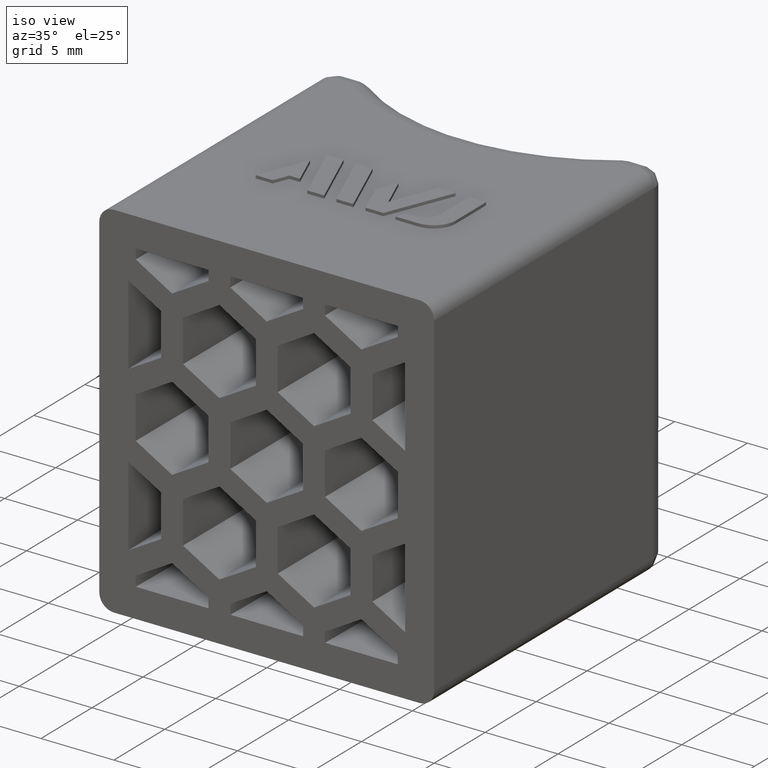
[diagram: clean part render]
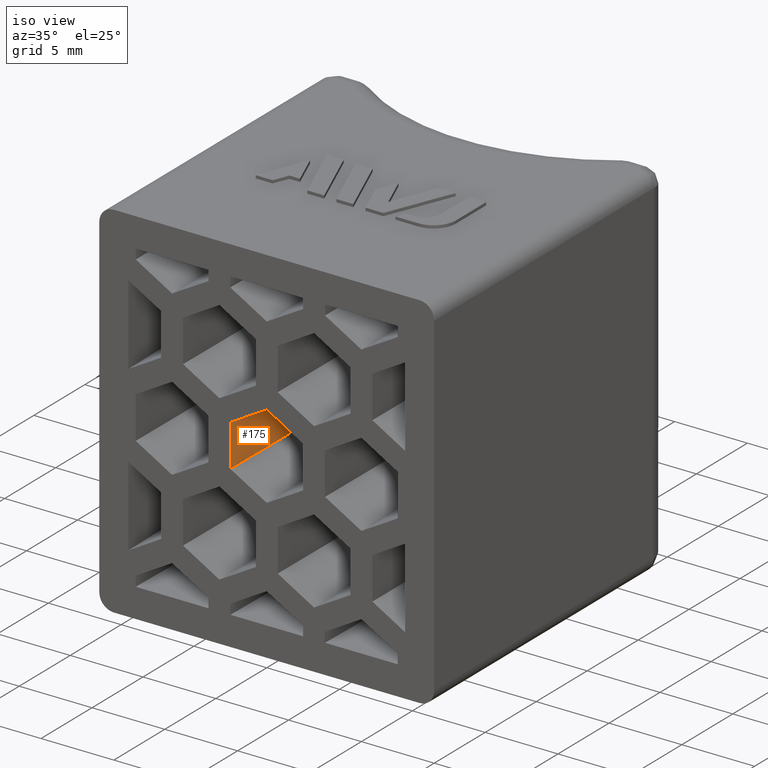
[diagram: same view with one face highlighted and labeled with its STEP entity id]
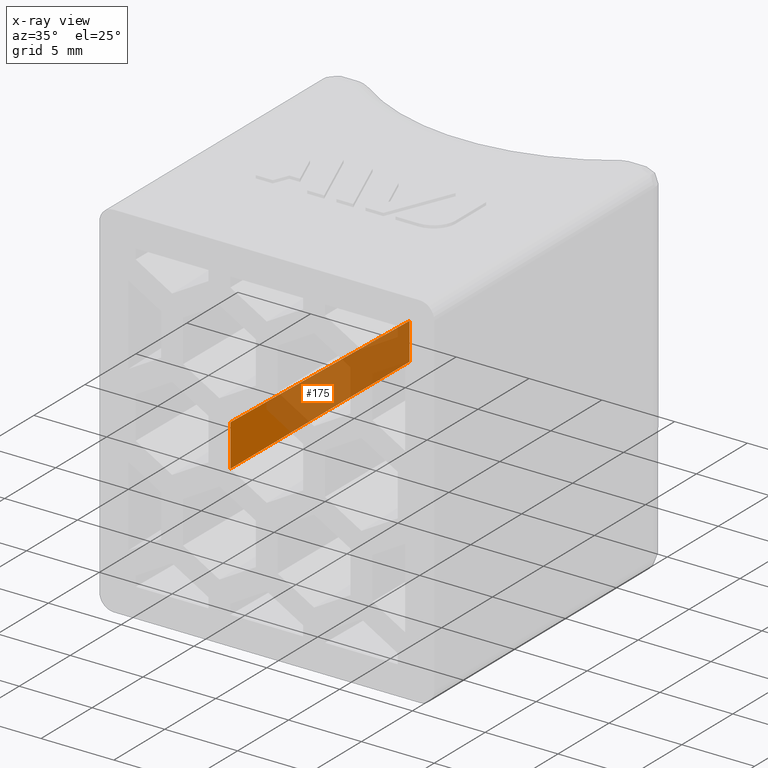
[diagram: x-ray of the same camera — body ghosted, the highlighted face saturated]
A machine part, iso view. The second image highlights one B-rep face of the part: STEP entity #175.
The next image is the same camera in x-ray: the body ghosted, the highlighted face saturated — about 73% of this face is hidden behind the body in this view.
In plain terms, the highlighted planar face has unit normal (-0.9998, 0.0175, -0).
Its self-contained STEP definition (entity closure, byte-faithful):
#175 = ADVANCED_FACE( '', ( #466 ), #467, .F. );
#466 = FACE_OUTER_BOUND( '', #1088, .T. );
#467 = PLANE( '', #1089 );
#1088 = EDGE_LOOP( '', ( #2311, #2312, #2313, #2314 ) );
#1089 = AXIS2_PLACEMENT_3D( '', #2315, #2316, #2317 );
#2311 = ORIENTED_EDGE( '', *, *, #2974, .T. );
#2312 = ORIENTED_EDGE( '', *, *, #3134, .T. );
#2313 = ORIENTED_EDGE( '', *, *, #2875, .T. );
#2314 = ORIENTED_EDGE( '', *, *, #3133, .F. );
#2315 = CARTESIAN_POINT( '', ( -2.50000000000000, 0.000000000000000, 1.44337567297406 ) );
#2316 = DIRECTION( '', ( -0.999847695156391, 0.0174524064372835, -1.11005393228102E-016 ) );
#2317 = DIRECTION( '', ( -0.0174524064372835, -0.999847695156391, 0.000000000000000 ) );
#2875 = EDGE_CURVE( '', #3363, #3361, #3364, .T. );
#2974 = EDGE_CURVE( '', #3537, #3535, #3538, .T. );
#3133 = EDGE_CURVE( '', #3537, #3361, #3780, .T. );
#3134 = EDGE_CURVE( '', #3535, #3363, #3781, .T. );
#3361 = VERTEX_POINT( '', #4111 );
#3363 = VERTEX_POINT( '', #4114 );
#3364 = LINE( '', #4115, #4116 );
#3535 = VERTEX_POINT( '', #4358 );
#3537 = VERTEX_POINT( '', #4360 );
#3538 = LINE( '', #4361, #4362 );
#3780 = LINE( '', #4716, #4717 );
#3781 = LINE( '', #4718, #4719 );
#4111 = CARTESIAN_POINT( '', ( -2.50000000000000, 0.000000000000000, -1.44337567297407 ) );
#4114 = CARTESIAN_POINT( '', ( -2.50000000000000, 0.000000000000000, 1.44337567297407 ) );
#4115 = CARTESIAN_POINT( '', ( -2.50000000000000, 0.000000000000000, 1.44337567297406 ) );
#4116 = VECTOR( '', #4945, 1000.00000000000 );
#4358 = CARTESIAN_POINT( '', ( -2.20084420434417, 17.1386240547420, 1.27065799382253 ) );
#4360 = CARTESIAN_POINT( '', ( -2.20084420434416, 17.1386240547420, -1.27065799382254 ) );
#4361 = CARTESIAN_POINT( '', ( -2.20084420434417, 17.1386240547420, -10.5000000000000 ) );
#4362 = VECTOR( '', #5098, 1000.00000000000 );
#4716 = CARTESIAN_POINT( '', ( -2.49949240738453, 0.0290799614642845, -1.44308261424089 ) );
#4717 = VECTOR( '', #5349, 1000.00000000000 );
#4718 = CARTESIAN_POINT( '', ( -2.49923861107680, 0.0436199421964267, 1.44293608487430 ) );
#4719 = VECTOR( '', #5350, 1000.00000000000 );
#4945 = DIRECTION( '', ( 1.11022302462516E-016, 0.000000000000000, -1.00000000000000 ) );
#5098 = DIRECTION( '', ( 0.000000000000000, 0.000000000000000, 1.00000000000000 ) );
#5349 = DIRECTION( '', ( -0.0174515205435363, -0.999796942337605, -0.0100756400835790 ) );
#5350 = DIRECTION( '', ( -0.0174515205435363, -0.999796942337605, 0.0100756400835790 ) );